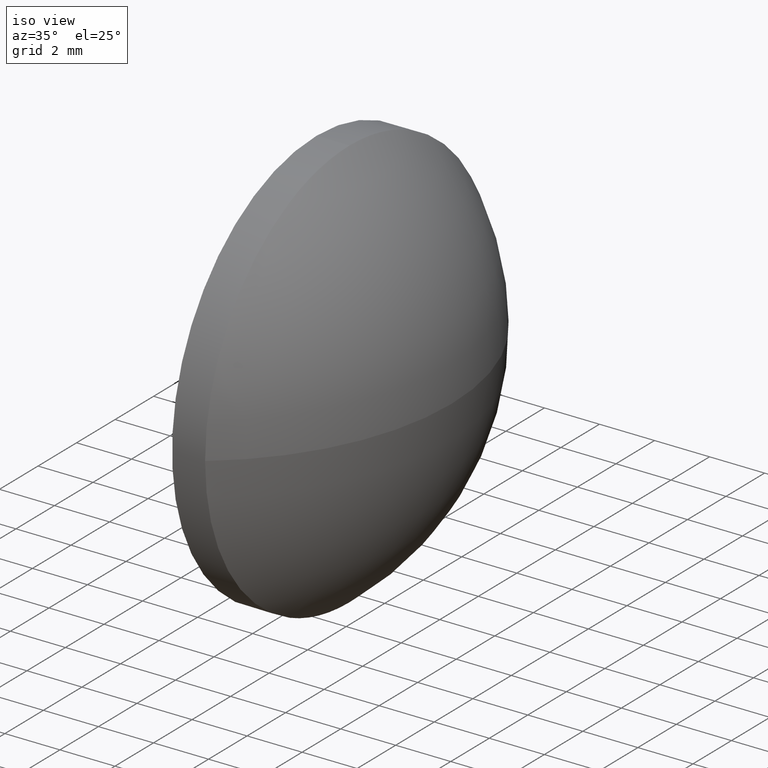
[diagram: clean part render]
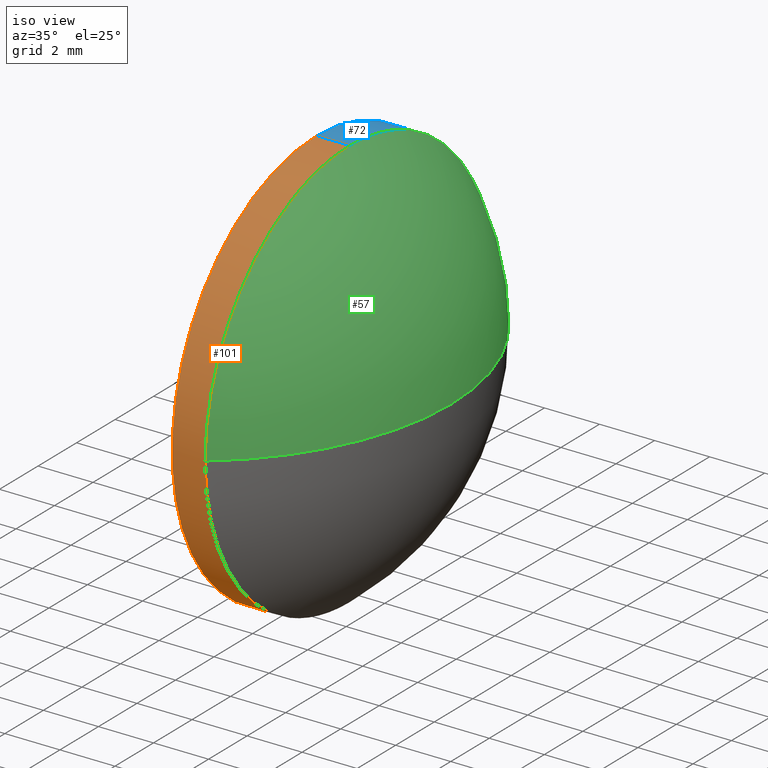
[diagram: same view with three faces highlighted in distinct colors, each labeled with its STEP entity id]
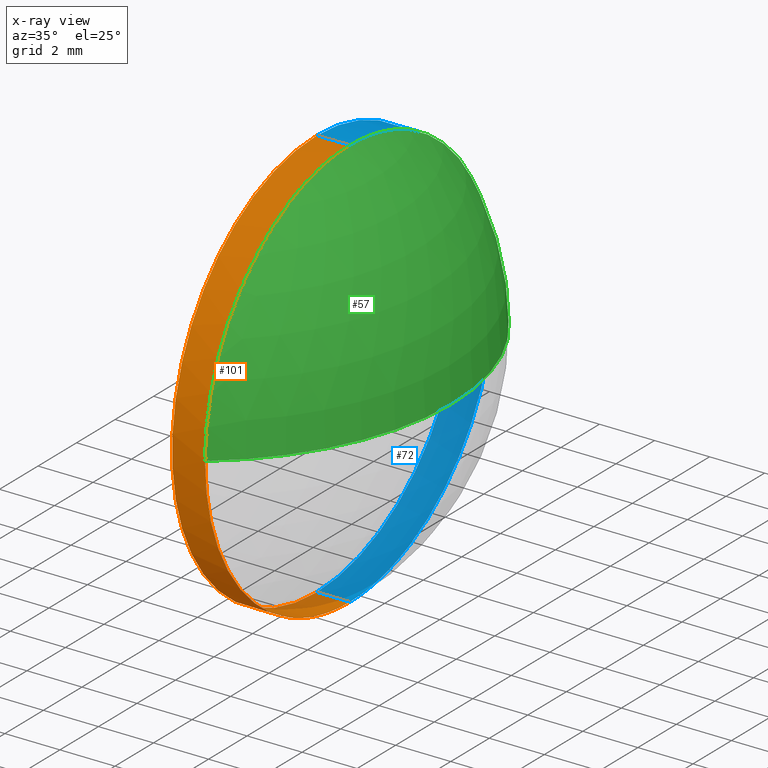
[diagram: x-ray of the same camera — body ghosted, the three highlighted faces saturated]
A machine part, iso view with three faces highlighted in distinct colors.
The next image is the same camera in x-ray (body ghosted, the three faces saturated) — at least one of them is partly hidden behind the body in this view.
Their STEP definitions:

[orange] entity #101 — the highlighted cylindrical surface (partial cylindrical patch) has radius 7.5 mm, axis along (-1, -0, -0).
#6 = DIRECTION ( 'NONE',  ( -1.000000000000000000, -0.0000000000000000000, -0.0000000000000000000 ) ) ;
#8 = DIRECTION ( 'NONE',  ( -1.000000000000000000, -0.0000000000000000000, -0.0000000000000000000 ) ) ;
#22 = CIRCLE ( 'NONE', #44, 7.500000000000007100 ) ;
#29 = ORIENTED_EDGE ( 'NONE', *, *, #46, .F. ) ;
#36 = EDGE_CURVE ( 'NONE', #115, #92, #68, .T. ) ;
#38 = VECTOR ( 'NONE', #8, 1000.000000000000000 ) ;
#40 = CARTESIAN_POINT ( 'NONE',  ( 377.5009013255557300, 56.89119272010739800, -7.500000000000007100 ) ) ;
#42 = CARTESIAN_POINT ( 'NONE',  ( 373.4600891948222700, 56.89119272010739800, -7.500000000000007100 ) ) ;
#44 = AXIS2_PLACEMENT_3D ( 'NONE', #172, #6, #131 ) ;
#46 = EDGE_CURVE ( 'NONE', #100, #92, #142, .T. ) ;
#49 = EDGE_CURVE ( 'NONE', #170, #132, #22, .T. ) ;
#54 = DIRECTION ( 'NONE',  ( 0.0000000000000000000, 0.0000000000000000000, 1.000000000000000000 ) ) ;
#59 = AXIS2_PLACEMENT_3D ( 'NONE', #79, #129, #93 ) ;
#67 = FACE_OUTER_BOUND ( 'NONE', #140, .T. ) ;
#68 = LINE ( 'NONE', #120, #87 ) ;
#78 = ORIENTED_EDGE ( 'NONE', *, *, #49, .T. ) ;
#79 = CARTESIAN_POINT ( 'NONE',  ( 376.3009013255557400, 56.89119272010739800, 0.0000000000000000000 ) ) ;
#82 = CARTESIAN_POINT ( 'NONE',  ( 373.4600891948222700, 56.89119272010739800, 0.0000000000000000000 ) ) ;
#87 = VECTOR ( 'NONE', #175, 1000.000000000000000 ) ;
#92 = VERTEX_POINT ( 'NONE', #119 ) ;
#93 = DIRECTION ( 'NONE',  ( 0.0000000000000000000, 0.0000000000000000000, 1.000000000000000000 ) ) ;
#100 = VERTEX_POINT ( 'NONE', #182 ) ;
#101 = ADVANCED_FACE ( 'NONE', ( #67 ), #126, .T. ) ;
#112 = DIRECTION ( 'NONE',  ( 0.0000000000000000000, 0.0000000000000000000, 1.000000000000000000 ) ) ;
#113 = ORIENTED_EDGE ( 'NONE', *, *, #36, .T. ) ;
#114 = AXIS2_PLACEMENT_3D ( 'NONE', #161, #121, #112 ) ;
#115 = VERTEX_POINT ( 'NONE', #133 ) ;
#118 = ORIENTED_EDGE ( 'NONE', *, *, #148, .T. ) ;
#119 = CARTESIAN_POINT ( 'NONE',  ( 376.3009013255557400, 56.89119272010739800, 7.500000000000007100 ) ) ;
#120 = CARTESIAN_POINT ( 'NONE',  ( 373.4600891948222700, 56.89119272010739800, 7.500000000000007100 ) ) ;
#121 = DIRECTION ( 'NONE',  ( -1.000000000000000000, -0.0000000000000000000, -0.0000000000000000000 ) ) ;
#124 = CIRCLE ( 'NONE', #114, 7.500000000000007100 ) ;
#126 = CYLINDRICAL_SURFACE ( 'NONE', #180, 7.500000000000007100 ) ;
#129 = DIRECTION ( 'NONE',  ( -1.000000000000000000, -0.0000000000000000000, -0.0000000000000000000 ) ) ;
#131 = DIRECTION ( 'NONE',  ( 0.0000000000000000000, 0.0000000000000000000, 1.000000000000000000 ) ) ;
#132 = VERTEX_POINT ( 'NONE', #179 ) ;
#133 = CARTESIAN_POINT ( 'NONE',  ( 377.5009013255557300, 56.89119272010739800, 7.500000000000007100 ) ) ;
#140 = EDGE_LOOP ( 'NONE', ( #168, #78, #118, #113, #29 ) ) ;
#142 = CIRCLE ( 'NONE', #59, 7.500000000000007100 ) ;
#148 = EDGE_CURVE ( 'NONE', #132, #115, #124, .T. ) ;
#149 = DIRECTION ( 'NONE',  ( -1.000000000000000000, -0.0000000000000000000, -0.0000000000000000000 ) ) ;
#157 = LINE ( 'NONE', #42, #38 ) ;
#161 = CARTESIAN_POINT ( 'NONE',  ( 377.5009013255557300, 56.89119272010739800, 0.0000000000000000000 ) ) ;
#165 = EDGE_CURVE ( 'NONE', #170, #100, #157, .T. ) ;
#168 = ORIENTED_EDGE ( 'NONE', *, *, #165, .F. ) ;
#170 = VERTEX_POINT ( 'NONE', #40 ) ;
#172 = CARTESIAN_POINT ( 'NONE',  ( 377.5009013255557300, 56.89119272010739800, 0.0000000000000000000 ) ) ;
#175 = DIRECTION ( 'NONE',  ( -1.000000000000000000, -0.0000000000000000000, -0.0000000000000000000 ) ) ;
#179 = CARTESIAN_POINT ( 'NONE',  ( 377.5009013255557300, 49.39119272010739100, -9.184850993605151900E-016 ) ) ;
#180 = AXIS2_PLACEMENT_3D ( 'NONE', #82, #149, #54 ) ;
#182 = CARTESIAN_POINT ( 'NONE',  ( 376.3009013255557400, 56.89119272010739800, -7.500000000000007100 ) ) ;

[blue] entity #72 — the highlighted cylindrical surface (partial cylindrical patch) has radius 7.5 mm, axis along (-1, -0, -0).
#2 = DIRECTION ( 'NONE',  ( -1.000000000000000000, -0.0000000000000000000, -0.0000000000000000000 ) ) ;
#7 = EDGE_CURVE ( 'NONE', #115, #33, #166, .T. ) ;
#8 = DIRECTION ( 'NONE',  ( -1.000000000000000000, -0.0000000000000000000, -0.0000000000000000000 ) ) ;
#12 = AXIS2_PLACEMENT_3D ( 'NONE', #64, #2, #34 ) ;
#18 = DIRECTION ( 'NONE',  ( 0.0000000000000000000, 0.0000000000000000000, 1.000000000000000000 ) ) ;
#19 = DIRECTION ( 'NONE',  ( -1.000000000000000000, -0.0000000000000000000, -0.0000000000000000000 ) ) ;
#26 = EDGE_CURVE ( 'NONE', #33, #170, #61, .T. ) ;
#27 = CYLINDRICAL_SURFACE ( 'NONE', #12, 7.500000000000007100 ) ;
#28 = ORIENTED_EDGE ( 'NONE', *, *, #26, .T. ) ;
#33 = VERTEX_POINT ( 'NONE', #50 ) ;
#34 = DIRECTION ( 'NONE',  ( 0.0000000000000000000, 0.0000000000000000000, 1.000000000000000000 ) ) ;
#36 = EDGE_CURVE ( 'NONE', #115, #92, #68, .T. ) ;
#38 = VECTOR ( 'NONE', #8, 1000.000000000000000 ) ;
#40 = CARTESIAN_POINT ( 'NONE',  ( 377.5009013255557300, 56.89119272010739800, -7.500000000000007100 ) ) ;
#42 = CARTESIAN_POINT ( 'NONE',  ( 373.4600891948222700, 56.89119272010739800, -7.500000000000007100 ) ) ;
#45 = ORIENTED_EDGE ( 'NONE', *, *, #185, .F. ) ;
#47 = CARTESIAN_POINT ( 'NONE',  ( 377.5009013255557300, 56.89119272010739800, 0.0000000000000000000 ) ) ;
#48 = ORIENTED_EDGE ( 'NONE', *, *, #7, .T. ) ;
#50 = CARTESIAN_POINT ( 'NONE',  ( 377.5009013255557300, 64.39119272010739800, 0.0000000000000000000 ) ) ;
#56 = AXIS2_PLACEMENT_3D ( 'NONE', #156, #19, #18 ) ;
#61 = CIRCLE ( 'NONE', #154, 7.500000000000007100 ) ;
#64 = CARTESIAN_POINT ( 'NONE',  ( 373.4600891948222700, 56.89119272010739800, 0.0000000000000000000 ) ) ;
#65 = DIRECTION ( 'NONE',  ( 0.0000000000000000000, 0.0000000000000000000, 1.000000000000000000 ) ) ;
#66 = CARTESIAN_POINT ( 'NONE',  ( 376.3009013255557400, 56.89119272010739800, 0.0000000000000000000 ) ) ;
#68 = LINE ( 'NONE', #120, #87 ) ;
#72 = ADVANCED_FACE ( 'NONE', ( #105 ), #27, .T. ) ;
#77 = DIRECTION ( 'NONE',  ( -1.000000000000000000, -0.0000000000000000000, -0.0000000000000000000 ) ) ;
#80 = DIRECTION ( 'NONE',  ( -1.000000000000000000, -0.0000000000000000000, -0.0000000000000000000 ) ) ;
#87 = VECTOR ( 'NONE', #175, 1000.000000000000000 ) ;
#92 = VERTEX_POINT ( 'NONE', #119 ) ;
#94 = EDGE_LOOP ( 'NONE', ( #28, #103, #45, #143, #48 ) ) ;
#100 = VERTEX_POINT ( 'NONE', #182 ) ;
#103 = ORIENTED_EDGE ( 'NONE', *, *, #165, .T. ) ;
#105 = FACE_OUTER_BOUND ( 'NONE', #94, .T. ) ;
#115 = VERTEX_POINT ( 'NONE', #133 ) ;
#119 = CARTESIAN_POINT ( 'NONE',  ( 376.3009013255557400, 56.89119272010739800, 7.500000000000007100 ) ) ;
#120 = CARTESIAN_POINT ( 'NONE',  ( 373.4600891948222700, 56.89119272010739800, 7.500000000000007100 ) ) ;
#133 = CARTESIAN_POINT ( 'NONE',  ( 377.5009013255557300, 56.89119272010739800, 7.500000000000007100 ) ) ;
#143 = ORIENTED_EDGE ( 'NONE', *, *, #36, .F. ) ;
#154 = AXIS2_PLACEMENT_3D ( 'NONE', #47, #77, #65 ) ;
#155 = CIRCLE ( 'NONE', #169, 7.500000000000007100 ) ;
#156 = CARTESIAN_POINT ( 'NONE',  ( 377.5009013255557300, 56.89119272010739800, 0.0000000000000000000 ) ) ;
#157 = LINE ( 'NONE', #42, #38 ) ;
#165 = EDGE_CURVE ( 'NONE', #170, #100, #157, .T. ) ;
#166 = CIRCLE ( 'NONE', #56, 7.500000000000007100 ) ;
#169 = AXIS2_PLACEMENT_3D ( 'NONE', #66, #80, #178 ) ;
#170 = VERTEX_POINT ( 'NONE', #40 ) ;
#175 = DIRECTION ( 'NONE',  ( -1.000000000000000000, -0.0000000000000000000, -0.0000000000000000000 ) ) ;
#178 = DIRECTION ( 'NONE',  ( 0.0000000000000000000, 0.0000000000000000000, 1.000000000000000000 ) ) ;
#182 = CARTESIAN_POINT ( 'NONE',  ( 376.3009013255557400, 56.89119272010739800, -7.500000000000007100 ) ) ;
#185 = EDGE_CURVE ( 'NONE', #92, #100, #155, .T. ) ;

[green] entity #57 — the highlighted spherical surface has radius 9.4514 mm.
#7 = EDGE_CURVE ( 'NONE', #115, #33, #166, .T. ) ;
#18 = DIRECTION ( 'NONE',  ( 0.0000000000000000000, 0.0000000000000000000, 1.000000000000000000 ) ) ;
#19 = DIRECTION ( 'NONE',  ( -1.000000000000000000, -0.0000000000000000000, -0.0000000000000000000 ) ) ;
#21 = DIRECTION ( 'NONE',  ( 0.0000000000000000000, 1.224646799147353200E-016, -1.000000000000000000 ) ) ;
#33 = VERTEX_POINT ( 'NONE', #50 ) ;
#50 = CARTESIAN_POINT ( 'NONE',  ( 377.5009013255557300, 64.39119272010739800, 0.0000000000000000000 ) ) ;
#56 = AXIS2_PLACEMENT_3D ( 'NONE', #156, #19, #18 ) ;
#57 = ADVANCED_FACE ( 'NONE', ( #141 ), #98, .T. ) ;
#60 = ORIENTED_EDGE ( 'NONE', *, *, #117, .T. ) ;
#63 = AXIS2_PLACEMENT_3D ( 'NONE', #144, #130, #90 ) ;
#69 = DIRECTION ( 'NONE',  ( 0.0000000000000000000, 1.000000000000000000, 1.224646799147352700E-016 ) ) ;
#74 = AXIS2_PLACEMENT_3D ( 'NONE', #164, #21, #69 ) ;
#75 = EDGE_LOOP ( 'NONE', ( #163, #60, #111, #177 ) ) ;
#81 = DIRECTION ( 'NONE',  ( -0.0000000000000000000, 0.0000000000000000000, 1.000000000000000000 ) ) ;
#84 = VERTEX_POINT ( 'NONE', #116 ) ;
#85 = CIRCLE ( 'NONE', #74, 9.451351351351396700 ) ;
#90 = DIRECTION ( 'NONE',  ( 0.0000000000000000000, 1.000000000000000000, 0.0000000000000000000 ) ) ;
#98 = SPHERICAL_SURFACE ( 'NONE', #63, 9.451351351351393100 ) ;
#108 = EDGE_CURVE ( 'NONE', #84, #132, #85, .T. ) ;
#111 = ORIENTED_EDGE ( 'NONE', *, *, #7, .F. ) ;
#112 = DIRECTION ( 'NONE',  ( 0.0000000000000000000, 0.0000000000000000000, 1.000000000000000000 ) ) ;
#114 = AXIS2_PLACEMENT_3D ( 'NONE', #161, #121, #112 ) ;
#115 = VERTEX_POINT ( 'NONE', #133 ) ;
#116 = CARTESIAN_POINT ( 'NONE',  ( 381.2009013255557200, 56.89119272010739100, 0.0000000000000000000 ) ) ;
#117 = EDGE_CURVE ( 'NONE', #84, #33, #151, .T. ) ;
#121 = DIRECTION ( 'NONE',  ( -1.000000000000000000, -0.0000000000000000000, -0.0000000000000000000 ) ) ;
#124 = CIRCLE ( 'NONE', #114, 7.500000000000007100 ) ;
#125 = AXIS2_PLACEMENT_3D ( 'NONE', #183, #81, #139 ) ;
#130 = DIRECTION ( 'NONE',  ( -0.0000000000000000000, 0.0000000000000000000, -1.000000000000000000 ) ) ;
#132 = VERTEX_POINT ( 'NONE', #179 ) ;
#133 = CARTESIAN_POINT ( 'NONE',  ( 377.5009013255557300, 56.89119272010739800, 7.500000000000007100 ) ) ;
#139 = DIRECTION ( 'NONE',  ( 1.000000000000000000, 0.0000000000000000000, 0.0000000000000000000 ) ) ;
#141 = FACE_OUTER_BOUND ( 'NONE', #75, .T. ) ;
#144 = CARTESIAN_POINT ( 'NONE',  ( 371.7495499742043400, 56.89119272010739100, 0.0000000000000000000 ) ) ;
#148 = EDGE_CURVE ( 'NONE', #132, #115, #124, .T. ) ;
#151 = CIRCLE ( 'NONE', #125, 9.451351351351389600 ) ;
#156 = CARTESIAN_POINT ( 'NONE',  ( 377.5009013255557300, 56.89119272010739800, 0.0000000000000000000 ) ) ;
#161 = CARTESIAN_POINT ( 'NONE',  ( 377.5009013255557300, 56.89119272010739800, 0.0000000000000000000 ) ) ;
#163 = ORIENTED_EDGE ( 'NONE', *, *, #108, .F. ) ;
#164 = CARTESIAN_POINT ( 'NONE',  ( 371.7495499742043400, 56.89119272010739100, 0.0000000000000000000 ) ) ;
#166 = CIRCLE ( 'NONE', #56, 7.500000000000007100 ) ;
#177 = ORIENTED_EDGE ( 'NONE', *, *, #148, .F. ) ;
#179 = CARTESIAN_POINT ( 'NONE',  ( 377.5009013255557300, 49.39119272010739100, -9.184850993605151900E-016 ) ) ;
#183 = CARTESIAN_POINT ( 'NONE',  ( 371.7495499742043400, 56.89119272010739100, 0.0000000000000000000 ) ) ;